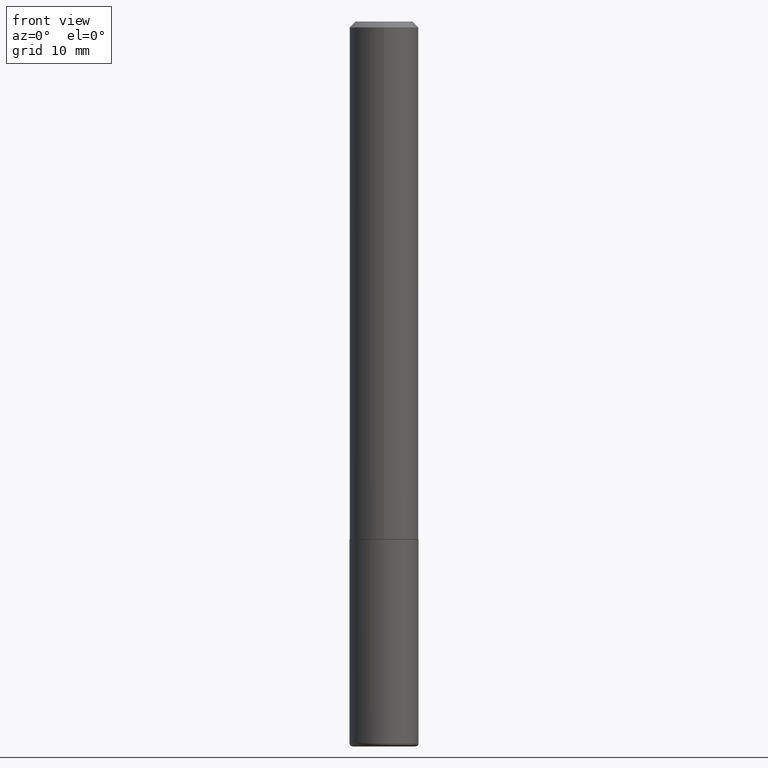
[diagram: clean part render]
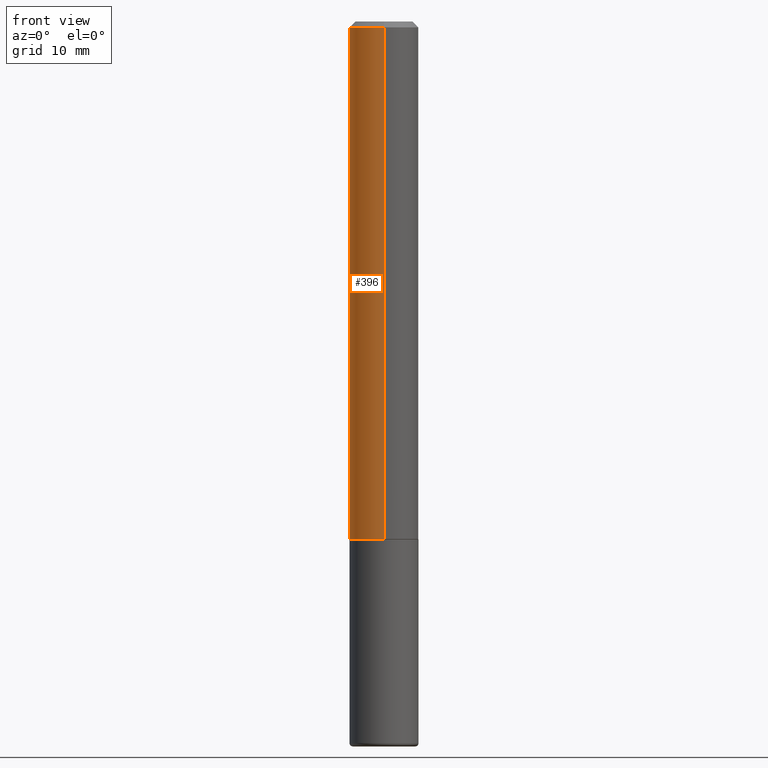
[diagram: same view with one face highlighted and labeled with its STEP entity id]
A machine part, front view. The second image highlights one B-rep face of the part: STEP entity #396.
In plain terms, the highlighted cylindrical surface (edge-blend (fillet) strip) has radius 2.9997 mm, axis along (-0, 0, 1).
Its self-contained STEP definition (entity closure, byte-faithful):
#2 = CIRCLE ( 'NONE', #327, 0.1180999999999999966 ) ;
#24 = DIRECTION ( 'NONE',  ( -2.443238767566187138E-29, 3.494674881071396916E-15, 1.000000000000000000 ) ) ;
#45 = CARTESIAN_POINT ( 'NONE',  ( 4.886477535132384121E-31, -6.989349762142808870E-17, -0.02000000000000004205 ) ) ;
#69 = ORIENTED_EDGE ( 'NONE', *, *, #312, .T. ) ;
#84 = CIRCLE ( 'NONE', #212, 0.1181000000000002326 ) ;
#85 = LINE ( 'NONE', #153, #338 ) ;
#86 = VERTEX_POINT ( 'NONE', #131 ) ;
#110 = ORIENTED_EDGE ( 'NONE', *, *, #230, .F. ) ;
#126 = VERTEX_POINT ( 'NONE', #137 ) ;
#131 = CARTESIAN_POINT ( 'NONE',  ( 8.391509709327014685E-16, 0.1180999999999940708, -1.770600000000000840 ) ) ;
#137 = CARTESIAN_POINT ( 'NONE',  ( -8.102248135368172434E-16, -0.1181000000000000660, -0.01999999999999962919 ) ) ;
#139 = DIRECTION ( 'NONE',  ( -2.443238767566187138E-29, 3.494674881071396916E-15, 1.000000000000000000 ) ) ;
#143 = CARTESIAN_POINT ( 'NONE',  ( 0.000000000000000000, 0.000000000000000000, 0.000000000000000000 ) ) ;
#146 = DIRECTION ( 'NONE',  ( -6.982962677686265922E-15, -1.000000000000000000, 4.626330217890360659E-15 ) ) ;
#153 = CARTESIAN_POINT ( 'NONE',  ( 8.391509709326790846E-16, 0.1181000000000001215, -4.127211034545323724E-16 ) ) ;
#181 = ORIENTED_EDGE ( 'NONE', *, *, #267, .F. ) ;
#193 = DIRECTION ( 'NONE',  ( -2.443238767566187138E-29, 3.494674881071397310E-15, 1.000000000000000000 ) ) ;
#208 = VERTEX_POINT ( 'NONE', #412 ) ;
#211 = DIRECTION ( 'NONE',  ( -6.982962677686265922E-15, -1.000000000000000000, 3.505890868245046092E-15 ) ) ;
#212 = AXIS2_PLACEMENT_3D ( 'NONE', #377, #139, #146 ) ;
#230 = EDGE_CURVE ( 'NONE', #86, #285, #85, .T. ) ;
#242 = DIRECTION ( 'NONE',  ( -2.443238767566187138E-29, 3.494674881071397310E-15, 1.000000000000000000 ) ) ;
#248 = CARTESIAN_POINT ( 'NONE',  ( -8.246878922347488542E-16, -0.1181000000000001215, 4.127211034545323724E-16 ) ) ;
#266 = ORIENTED_EDGE ( 'NONE', *, *, #305, .T. ) ;
#267 = EDGE_CURVE ( 'NONE', #285, #126, #2, .T. ) ;
#279 = DIRECTION ( 'NONE',  ( -2.443238767566187138E-29, 3.494674881071396916E-15, 1.000000000000000000 ) ) ;
#285 = VERTEX_POINT ( 'NONE', #339 ) ;
#305 = EDGE_CURVE ( 'NONE', #208, #126, #375, .T. ) ;
#312 = EDGE_CURVE ( 'NONE', #86, #208, #84, .T. ) ;
#327 = AXIS2_PLACEMENT_3D ( 'NONE', #45, #24, #211 ) ;
#333 = FACE_OUTER_BOUND ( 'NONE', #403, .T. ) ;
#337 = CYLINDRICAL_SURFACE ( 'NONE', #374, 0.1181000000000001215 ) ;
#338 = VECTOR ( 'NONE', #242, 39.37007874015748143 ) ;
#339 = CARTESIAN_POINT ( 'NONE',  ( 8.246878922347484598E-16, 0.1180999999999999273, -0.02000000000000045838 ) ) ;
#374 = AXIS2_PLACEMENT_3D ( 'NONE', #143, #279, #404 ) ;
#375 = LINE ( 'NONE', #248, #411 ) ;
#377 = CARTESIAN_POINT ( 'NONE',  ( 4.325998561852691348E-29, -6.187671344425017014E-15, -1.770600000000000174 ) ) ;
#396 = ADVANCED_FACE ( 'NONE', ( #333 ), #337, .T. ) ;
#403 = EDGE_LOOP ( 'NONE', ( #110, #69, #266, #181 ) ) ;
#404 = DIRECTION ( 'NONE',  ( -6.982962677686265922E-15, -1.000000000000000000, 3.494674881071396522E-15 ) ) ;
#411 = VECTOR ( 'NONE', #193, 39.37007874015748143 ) ;
#412 = CARTESIAN_POINT ( 'NONE',  ( -8.246878922347063544E-16, -0.1181000000000064221, -1.770599999999999730 ) ) ;